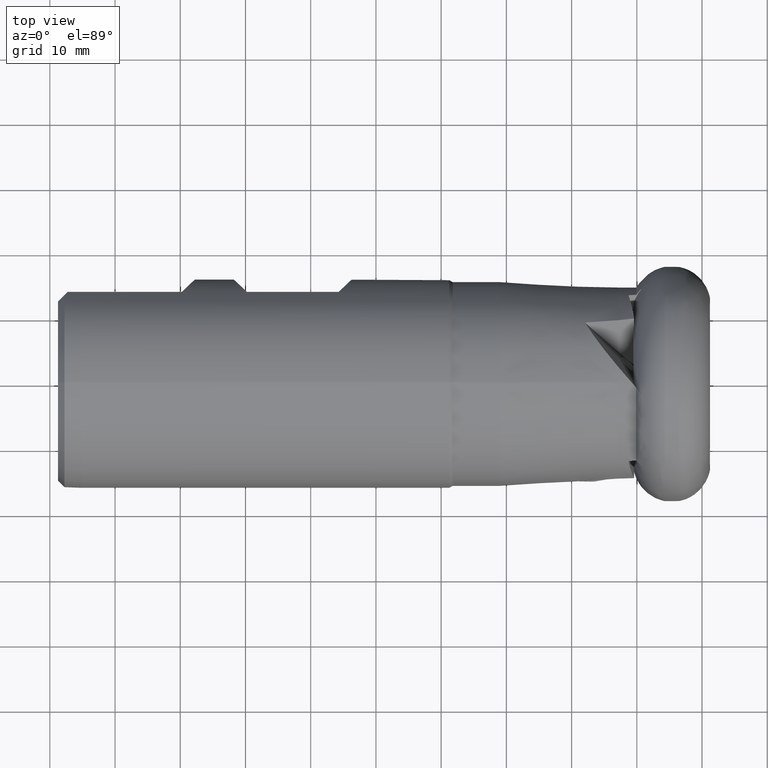
[diagram: clean part render]
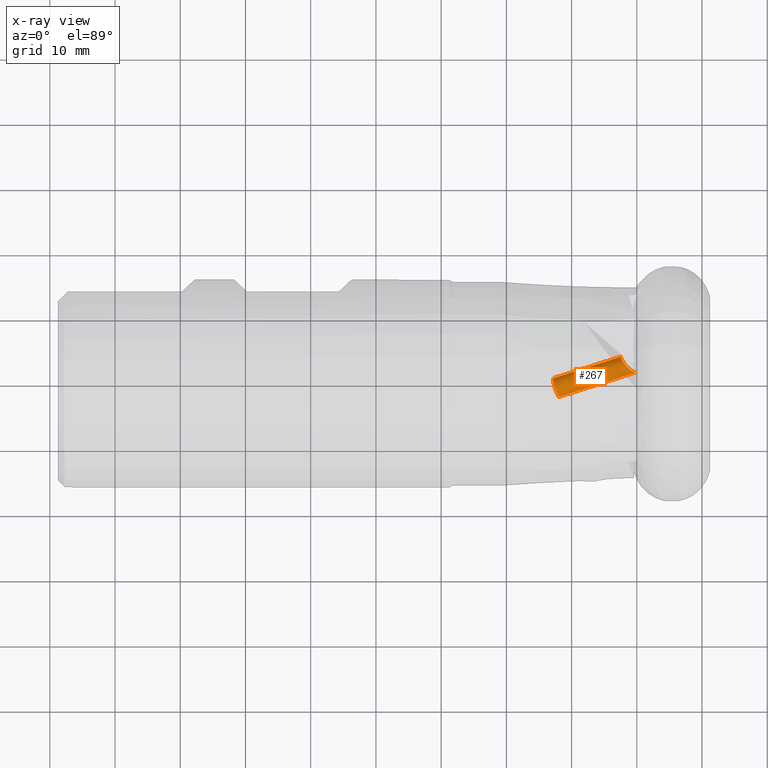
[diagram: x-ray — body ghosted, one internal face saturated and labeled with its STEP entity id]
A machine part, top view, then the same camera in x-ray: the body is ghosted and one INTERNAL B-rep face — a face not visible from any outside direction — is saturated and labeled: STEP entity #267.
In plain terms, the highlighted cylindrical surface (edge-blend (fillet) strip) has radius 1.5 mm, axis along (0.9397, 0.2962, 0.171).
Its self-contained STEP definition (entity closure, byte-faithful):
#133 = CARTESIAN_POINT ( 'NONE',  ( -10.86538016599566500, 1.880602567221477200, 10.18019011566427400 ) ) ;
#155 = CARTESIAN_POINT ( 'NONE',  ( -11.04974026660372600, 2.031957466996107800, 10.30729911861648400 ) ) ;
#174 = CARTESIAN_POINT ( 'NONE',  ( -12.34898000188156100, 4.048742912763575700, 8.918751496469520000 ) ) ;
#267 = ADVANCED_FACE ( 'NONE', ( #3811 ), #2226, .F. ) ;
#379 = DIRECTION ( 'NONE',  ( 0.9396926207859082100, 0.2961981327260260200, 0.1710100716628319700 ) ) ;
#393 = VERTEX_POINT ( 'NONE', #5627 ) ;
#397 = VERTEX_POINT ( 'NONE', #4648 ) ;
#483 = CIRCLE ( 'NONE', #3473, 1.500000000000000900 ) ;
#624 = CARTESIAN_POINT ( 'NONE',  ( -10.59111410894775300, 1.715584814709157900, 9.933204642637582200 ) ) ;
#764 = EDGE_CURVE ( 'NONE', #3987, #397, #3163, .T. ) ;
#1114 = CARTESIAN_POINT ( 'NONE',  ( -10.06072339715302300, 1.624513480672218600, 9.171051453416270100 ) ) ;
#1228 = ORIENTED_EDGE ( 'NONE', *, *, #2064, .T. ) ;
#1266 = ORIENTED_EDGE ( 'NONE', *, *, #4807, .F. ) ;
#1366 = CARTESIAN_POINT ( 'NONE',  ( -21.89665233265247900, -2.106259723484565700, 7.017088539709954300 ) ) ;
#1585 = CARTESIAN_POINT ( 'NONE',  ( -10.68106441308202800, 1.762431023403215700, 10.02124118214958200 ) ) ;
#1743 = B_SPLINE_CURVE_WITH_KNOTS ( 'NONE', 3,
 ( #155, #4313, #133, #1585, #624, #2499, #4836, #1114 ),
 .UNSPECIFIED., .F., .F.,
 ( 4, 2, 2, 4 ),
 ( 0.003290211028910876600, 0.003693359616148519100, 0.004096508203386161700, 0.004902805377861450100 ),
 .UNSPECIFIED. ) ;
#1812 = CARTESIAN_POINT ( 'NONE',  ( -22.79853206810215100, 0.7549660527842770900, 7.017088539709954300 ) ) ;
#2029 = VERTEX_POINT ( 'NONE', #2964 ) ;
#2064 = EDGE_CURVE ( 'NONE', #393, #397, #1743, .T. ) ;
#2226 = CYLINDRICAL_SURFACE ( 'NONE', #3480, 1.500000000000001600 ) ;
#2238 = ORIENTED_EDGE ( 'NONE', *, *, #764, .F. ) ;
#2256 = DIRECTION ( 'NONE',  ( -0.3006265784832245500, 0.9537419254229465600, 0.0000000000000000000 ) ) ;
#2439 = CARTESIAN_POINT ( 'NONE',  ( -12.03932862079949800, 2.906107152865603700, 10.93096791531952100 ) ) ;
#2442 = LINE ( 'NONE', #3783, #2805 ) ;
#2499 = CARTESIAN_POINT ( 'NONE',  ( -10.32983853597975500, 1.610463159234881000, 9.642118706808494400 ) ) ;
#2658 = DIRECTION ( 'NONE',  ( -0.3420201433256689900, 0.8137976813493780200, 0.4698463103929466100 ) ) ;
#2703 = ORIENTED_EDGE ( 'NONE', *, *, #5075, .T. ) ;
#2805 = VECTOR ( 'NONE', #5203, 1000.000000000000000 ) ;
#2931 =( BOUNDED_CURVE ( )  B_SPLINE_CURVE ( 3, ( #174, #5267, #2439, #3917 ),
 .UNSPECIFIED., .F., .F. ) 
 B_SPLINE_CURVE_WITH_KNOTS ( ( 4, 4 ),
 ( 2.898796606019067300, 5.043264166331122000 ),
 .UNSPECIFIED. ) 
 CURVE ( )  GEOMETRIC_REPRESENTATION_ITEM ( )  RATIONAL_B_SPLINE_CURVE ( ( 1.000000000000000000, 0.6521090398157563000, 0.6521090398157563000, 1.000000000000000000 ) ) 
 REPRESENTATION_ITEM ( '' )  );
#2964 = CARTESIAN_POINT ( 'NONE',  ( -12.34898000188156100, 4.048742912763575700, 8.918751496469520000 ) ) ;
#3163 = LINE ( 'NONE', #4950, #3883 ) ;
#3174 = EDGE_LOOP ( 'NONE', ( #2238, #1266, #3819, #2703, #1228 ) ) ;
#3473 = AXIS2_PLACEMENT_3D ( 'NONE', #4546, #4582, #2658 ) ;
#3480 = AXIS2_PLACEMENT_3D ( 'NONE', #4151, #4111, #2256 ) ;
#3783 = CARTESIAN_POINT ( 'NONE',  ( -22.79853206810215100, 0.7549660527842770900, 7.017088539709954300 ) ) ;
#3811 = FACE_OUTER_BOUND ( 'NONE', #3174, .T. ) ;
#3819 = ORIENTED_EDGE ( 'NONE', *, *, #4160, .T. ) ;
#3883 = VECTOR ( 'NONE', #379, 1000.000000000000000 ) ;
#3917 = CARTESIAN_POINT ( 'NONE',  ( -11.04974026660372600, 2.031957466996107800, 10.30729911861648400 ) ) ;
#3987 = VERTEX_POINT ( 'NONE', #1366 ) ;
#4036 = VERTEX_POINT ( 'NONE', #1812 ) ;
#4111 = DIRECTION ( 'NONE',  ( 0.9396926207859082100, 0.2961981327260260200, 0.1710100716628319700 ) ) ;
#4151 = CARTESIAN_POINT ( 'NONE',  ( -22.34759220037731400, -0.6756468353501443600, 7.017088539709954300 ) ) ;
#4160 = EDGE_CURVE ( 'NONE', #4036, #2029, #2442, .T. ) ;
#4313 = CARTESIAN_POINT ( 'NONE',  ( -10.95860726792453100, 1.951455426091932300, 10.24986432021247200 ) ) ;
#4546 = CARTESIAN_POINT ( 'NONE',  ( -22.34759220037731400, -0.6756468353501443600, 7.017088539709954300 ) ) ;
#4582 = DIRECTION ( 'NONE',  ( 0.9396926207859083200, 0.2961981327260260800, 0.1710100716628320000 ) ) ;
#4648 = CARTESIAN_POINT ( 'NONE',  ( -10.06072339715302300, 1.624513480672218600, 9.171051453416270100 ) ) ;
#4807 = EDGE_CURVE ( 'NONE', #4036, #3987, #483, .T. ) ;
#4836 = CARTESIAN_POINT ( 'NONE',  ( -10.17020398040331000, 1.590004383111837800, 9.416092137417233900 ) ) ;
#4950 = CARTESIAN_POINT ( 'NONE',  ( -21.89665233265247900, -2.106259723484565700, 7.017088539709954300 ) ) ;
#5075 = EDGE_CURVE ( 'NONE', #2029, #393, #2931, .T. ) ;
#5203 = DIRECTION ( 'NONE',  ( 0.9396926207859082100, 0.2961981327260260200, 0.1710100716628319700 ) ) ;
#5267 = CARTESIAN_POINT ( 'NONE',  ( -12.70345054722094600, 3.937011149298103700, 10.22119519462070900 ) ) ;
#5627 = CARTESIAN_POINT ( 'NONE',  ( -11.04974026660372600, 2.031957466996107800, 10.30729911861648400 ) ) ;